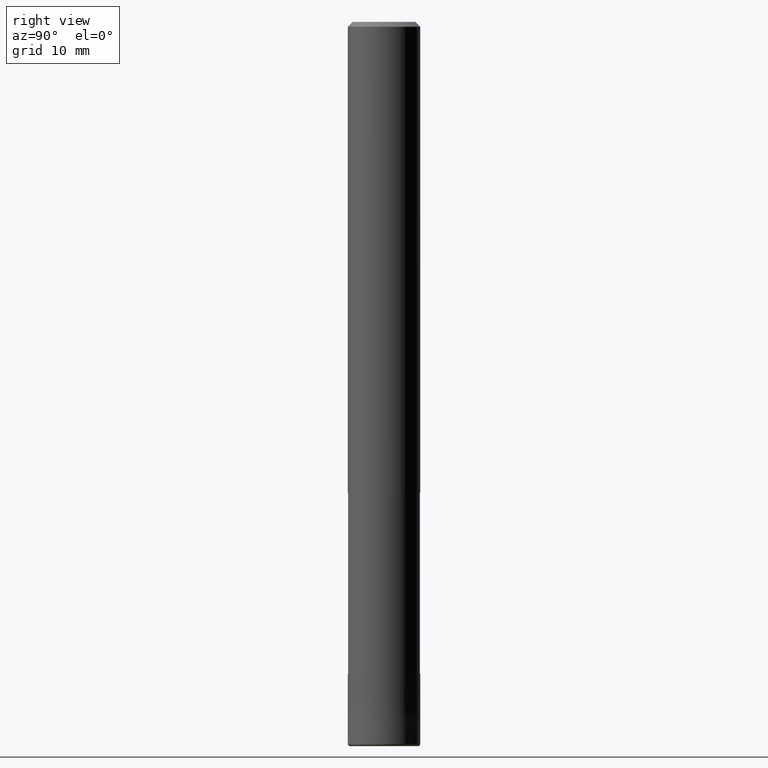
[diagram: clean part render]
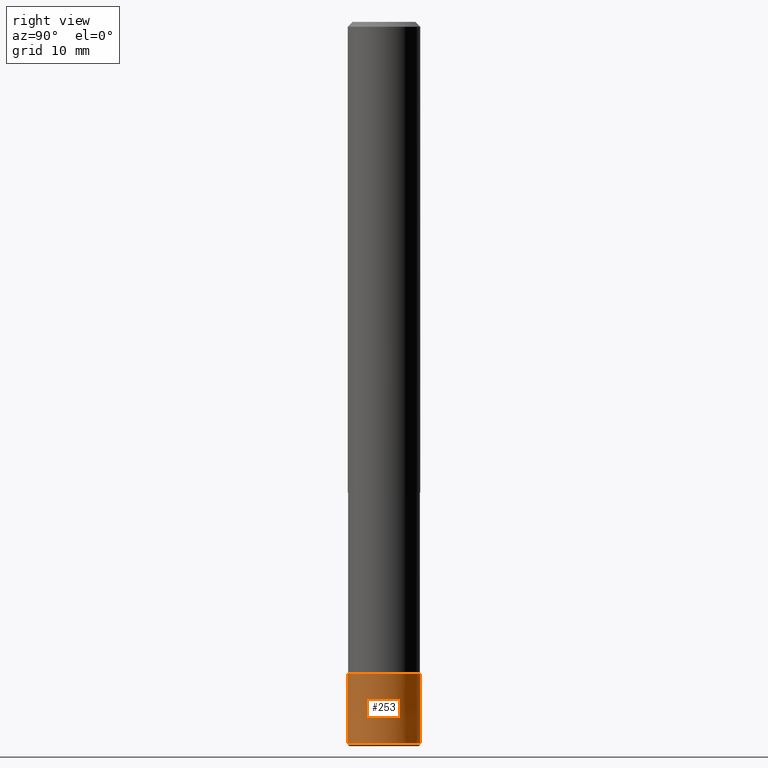
[diagram: same view with one face highlighted and labeled with its STEP entity id]
A machine part, right view. The second image highlights one B-rep face of the part: STEP entity #253.
In plain terms, the highlighted conical surface has half-angle 0.001 deg.
Its self-contained STEP definition (entity closure, byte-faithful):
#135=VERTEX_POINT('',#325);
#147=EDGE_CURVE('',#269,#267,#337,.T.);
#157=VERTEX_POINT('',#350);
#175=EDGE_CURVE('',#157,#267,#371,.T.);
#213=EDGE_CURVE('',#157,#135,#415,.T.);
#253=ADVANCED_FACE('',(#460),#461,.T.);
#267=VERTEX_POINT('',#475);
#269=VERTEX_POINT('',#477);
#279=EDGE_CURVE('',#135,#269,#489,.T.);
#325=CARTESIAN_POINT('',(0.0,3.0,-59.8));
#337=LINE('',#550,#551);
#350=CARTESIAN_POINT('',(0.0,2.9999,-54.0));
#371=CIRCLE('',#593,2.9999);
#415=LINE('',#646,#647);
#460=FACE_OUTER_BOUND('',#705,.T.);
#461=CONICAL_SURFACE('',#706,2.99995,1.72413793086728E-005);
#475=CARTESIAN_POINT('',(3.67369660083175E-016,-2.9999,-54.0));
#477=CARTESIAN_POINT('',(3.67381906146713E-016,-3.0,-59.8));
#489=CIRCLE('',#740,3.0);
#550=CARTESIAN_POINT('',(3.67375783114944E-016,-2.99995,-56.9));
#551=VECTOR('',#777,1.0);
#593=AXIS2_PLACEMENT_3D('',#829,#830,#831);
#646=CARTESIAN_POINT('',(-3.67375783114944E-016,2.99995,-56.9));
#647=VECTOR('',#895,1.0);
#705=EDGE_LOOP('',(#953,#954,#955,#956));
#706=AXIS2_PLACEMENT_3D('',#957,#958,#959);
#740=AXIS2_PLACEMENT_3D('',#984,#985,#986);
#777=DIRECTION('',(-2.11139026490163E-021,1.72413793078186E-005,0.999999999851368));
#829=CARTESIAN_POINT('',(0.0,0.0,-54.0));
#830=DIRECTION('',(0.0,0.0,-1.0));
#831=DIRECTION('',(0.0,1.0,0.0));
#895=DIRECTION('',(-2.11139026490163E-021,1.72413793078186E-005,-0.999999999851368));
#953=ORIENTED_EDGE('',*,*,#213,.F.);
#954=ORIENTED_EDGE('',*,*,#175,.T.);
#955=ORIENTED_EDGE('',*,*,#147,.F.);
#956=ORIENTED_EDGE('',*,*,#279,.F.);
#957=CARTESIAN_POINT('',(0.0,0.0,-56.9));
#958=DIRECTION('',(0.0,-0.0,-1.0));
#959=DIRECTION('',(0.0,1.0,0.0));
#984=CARTESIAN_POINT('',(0.0,0.0,-59.8));
#985=DIRECTION('',(0.0,0.0,-1.0));
#986=DIRECTION('',(0.0,1.0,0.0));